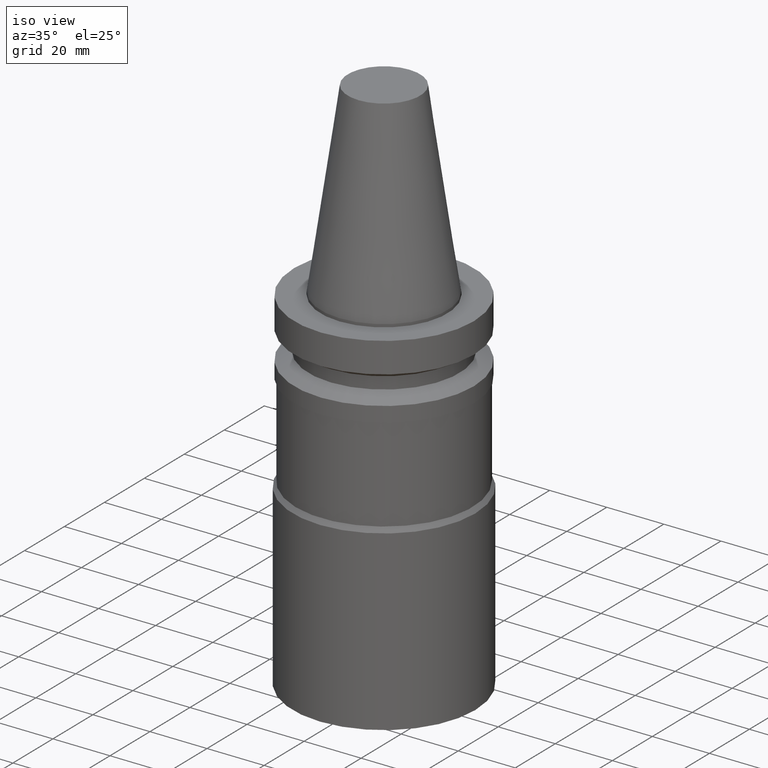
[diagram: clean part render]
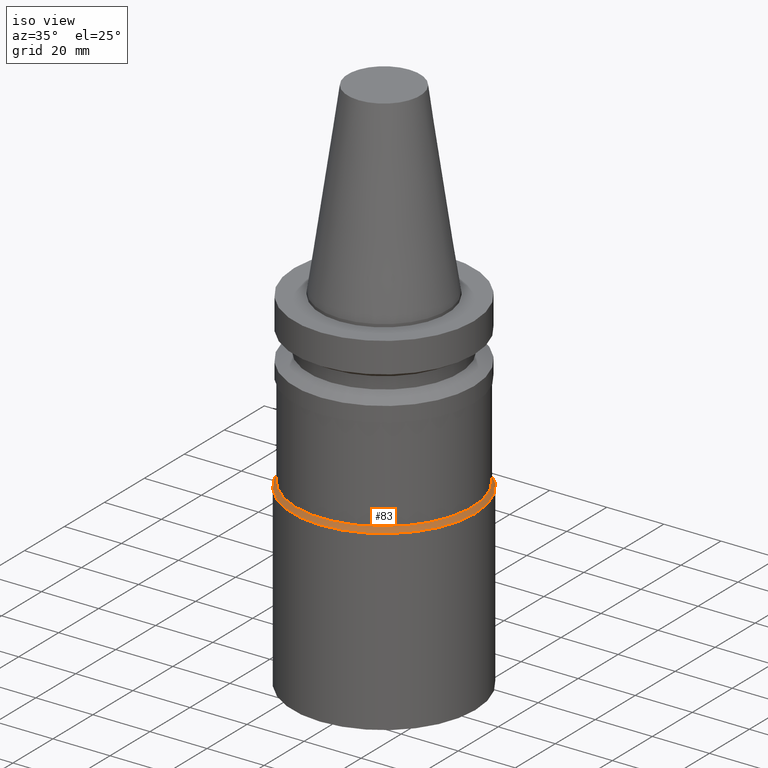
[diagram: same view with one face highlighted and labeled with its STEP entity id]
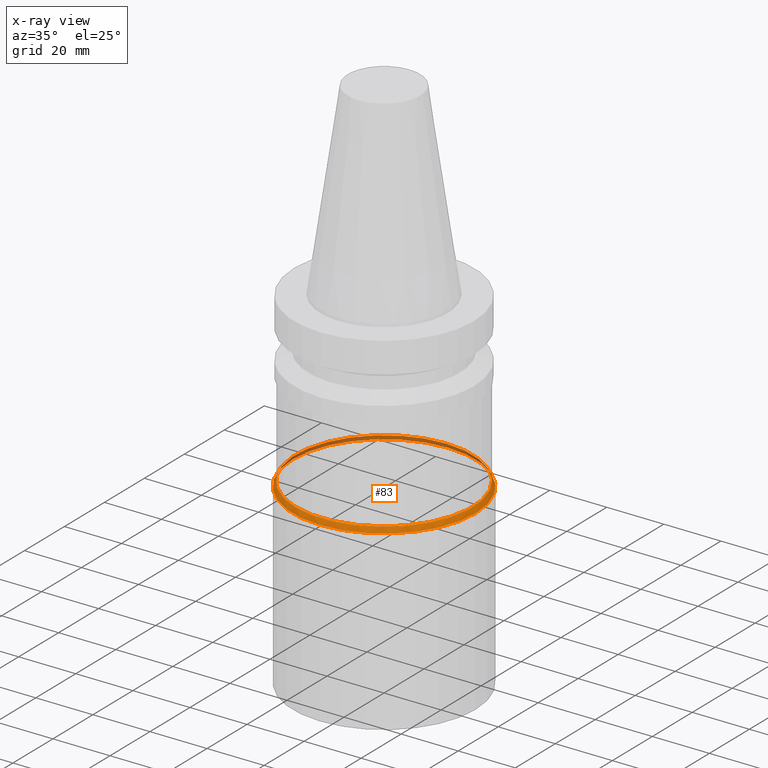
[diagram: x-ray of the same camera — body ghosted, the highlighted face saturated]
A machine part, iso view. The second image highlights one B-rep face of the part: STEP entity #83.
The next image is the same camera in x-ray: the body ghosted, the highlighted face saturated — about 29% of this face is hidden behind the body in this view.
In plain terms, the highlighted conical surface has half-angle 30 deg.
Its self-contained STEP definition (entity closure, byte-faithful):
#83=ADVANCED_FACE('',(#114,#115),#116,.T.);
#114=FACE_BOUND('',#154,.T.);
#115=FACE_BOUND('',#155,.T.);
#116=CONICAL_SURFACE('',#156,31.5,0.523598774990522);
#154=EDGE_LOOP('',(#210));
#155=EDGE_LOOP('',(#211));
#156=AXIS2_PLACEMENT_3D('',#212,#213,#214);
#210=ORIENTED_EDGE('',*,*,#247,.F.);
#211=ORIENTED_EDGE('',*,*,#246,.T.);
#212=CARTESIAN_POINT('',(3.72696915945274E-015,7.45393831890547E-015,-60.866025405));
#213=DIRECTION('',(6.12323399573677E-017,1.22464679914735E-016,-1.0));
#214=DIRECTION('',(-1.23259516440783E-032,1.0,1.22464679914735E-016));
#246=EDGE_CURVE('',#267,#267,#268,.T.);
#247=EDGE_CURVE('',#269,#269,#270,.T.);
#267=VERTEX_POINT('',#293);
#268=CIRCLE('',#294,31.0);
#269=VERTEX_POINT('',#295);
#270=CIRCLE('',#296,32.0);
#293=CARTESIAN_POINT('',(3.67394039744206E-015,31.0,-60.0));
#294=AXIS2_PLACEMENT_3D('',#327,#328,#329);
#295=CARTESIAN_POINT('',(3.77999792146341E-015,32.0,-61.73205081));
#296=AXIS2_PLACEMENT_3D('',#330,#331,#332);
#327=CARTESIAN_POINT('',(3.67394039744206E-015,7.34788079488412E-015,-60.0));
#328=DIRECTION('',(6.12323399573677E-017,1.22464679914735E-016,-1.0));
#329=DIRECTION('',(-1.23259516440783E-032,1.0,1.22464679914735E-016));
#330=CARTESIAN_POINT('',(3.77999792146341E-015,7.55999584292682E-015,-61.73205081));
#331=DIRECTION('',(6.12323399573677E-017,1.22464679914735E-016,-1.0));
#332=DIRECTION('',(-1.23259516440783E-032,1.0,1.22464679914735E-016));